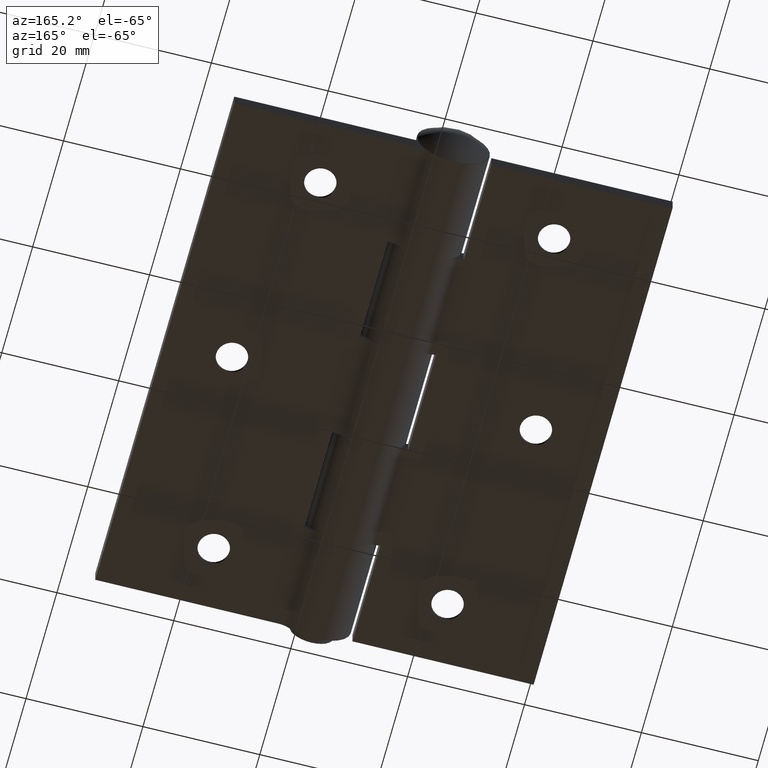
[diagram: clean part render]
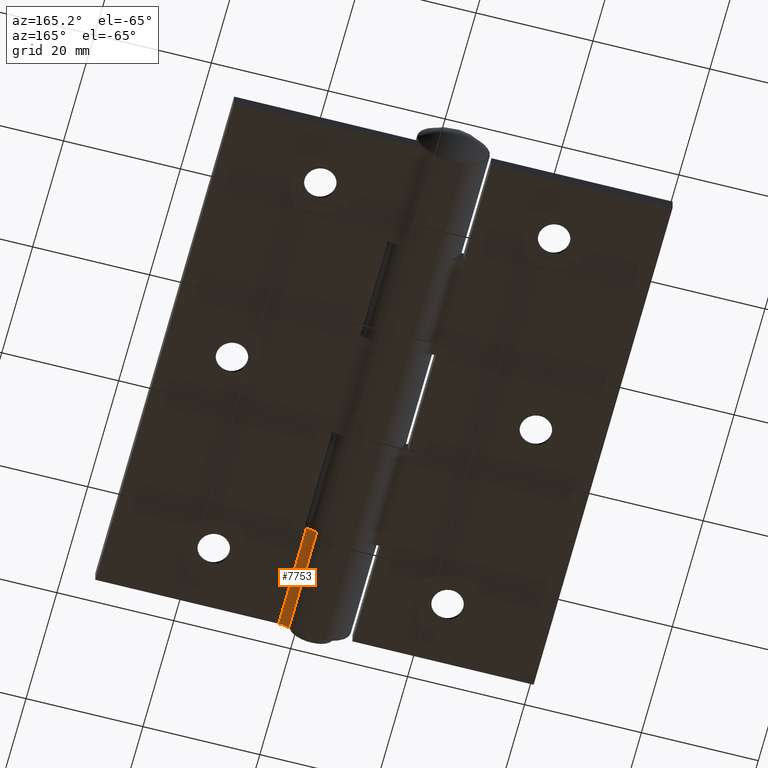
[diagram: same view with one face highlighted and labeled with its STEP entity id]
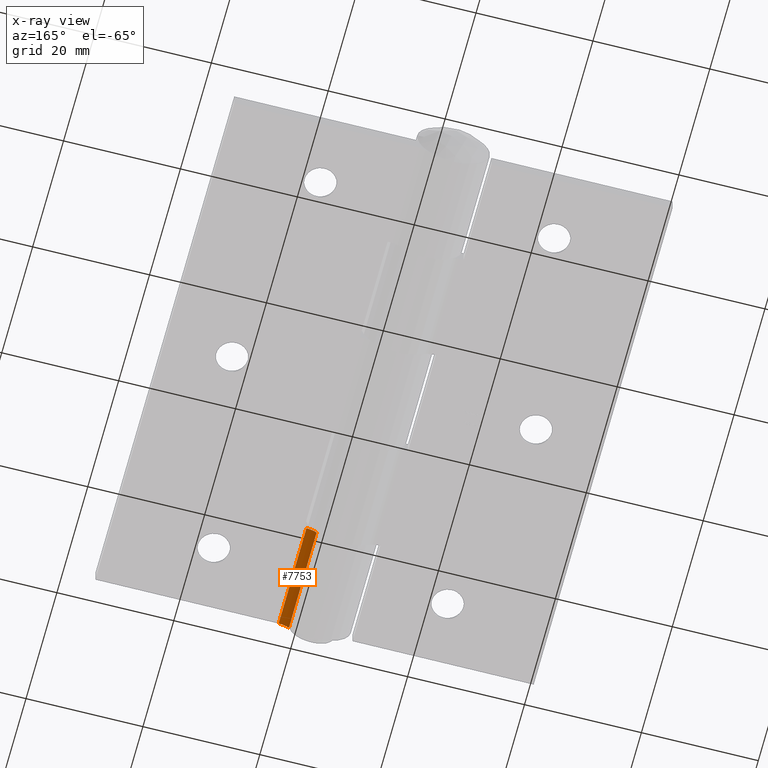
[diagram: x-ray of the same camera — body ghosted, the highlighted face saturated]
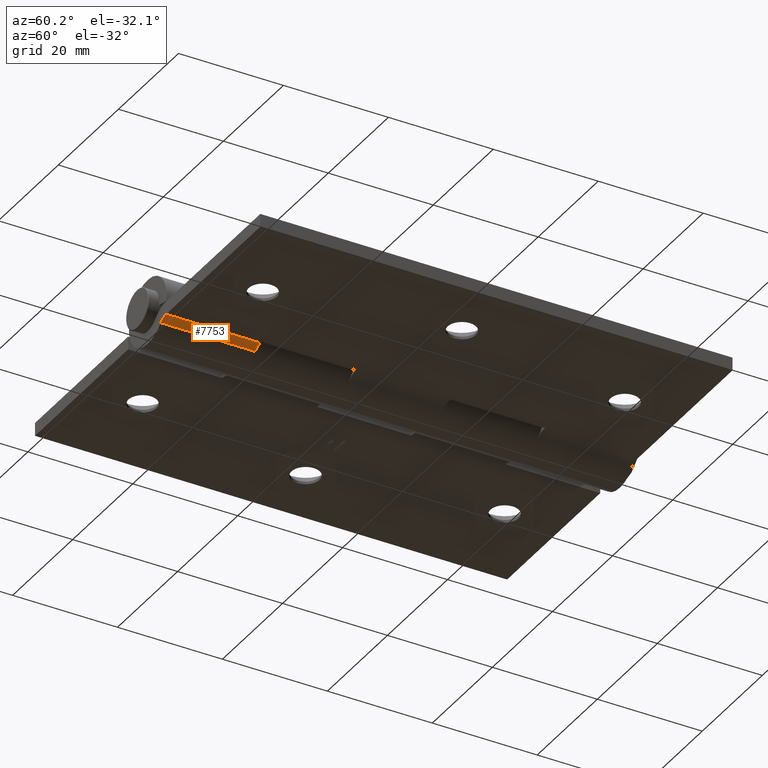
[diagram: same view with one face highlighted and labeled with its STEP entity id]
A machine part, auxiliary view. The second image highlights one B-rep face of the part: STEP entity #7753.
The next image is the same camera in x-ray: the body ghosted, the highlighted face saturated — about 0% of this face is hidden behind the body in this view.
A second angle (auxiliary view) of the same face is appended — the face is thin or edge-on in the first view.
In plain terms, the highlighted cylindrical surface (edge-blend (fillet) strip) has radius 2.5 mm, axis along (0, 1, -0).
Its self-contained STEP definition (entity closure, byte-faithful):
#213 = DIRECTION ( 'NONE',  ( 6.245004513516504751E-15, 0.000000000000000000, 1.000000000000000000 ) ) ;
#378 = DIRECTION ( 'NONE',  ( -0.000000000000000000, -1.000000000000000000, -0.000000000000000000 ) ) ;
#404 = VERTEX_POINT ( 'NONE', #633 ) ;
#633 = CARTESIAN_POINT ( 'NONE',  ( -4.374088826398531360, 26.99999999999999645, -4.464285714285714413 ) ) ;
#977 = VECTOR ( 'NONE', #1905, 1000.000000000000000 ) ;
#1078 = CARTESIAN_POINT ( 'NONE',  ( -6.123724356957946036, 26.99999999999999645, -3.750000000000000000 ) ) ;
#1250 = CARTESIAN_POINT ( 'NONE',  ( -6.123724356957943371, 26.99999999999999645, -6.250000000000000000 ) ) ;
#1427 = ORIENTED_EDGE ( 'NONE', *, *, #9127, .F. ) ;
#1782 = AXIS2_PLACEMENT_3D ( 'NONE', #10168, #6295, #10132 ) ;
#1905 = DIRECTION ( 'NONE',  ( -0.000000000000000000, -1.000000000000000000, -0.000000000000000000 ) ) ;
#1936 = CYLINDRICAL_SURFACE ( 'NONE', #1782, 2.500000000000000444 ) ;
#2646 = LINE ( 'NONE', #9975, #7915 ) ;
#3129 = ORIENTED_EDGE ( 'NONE', *, *, #11970, .T. ) ;
#3441 = VERTEX_POINT ( 'NONE', #1078 ) ;
#4158 = CIRCLE ( 'NONE', #6684, 2.500000000000000444 ) ;
#5054 = VERTEX_POINT ( 'NONE', #6358 ) ;
#5163 = ORIENTED_EDGE ( 'NONE', *, *, #8050, .F. ) ;
#5235 = DIRECTION ( 'NONE',  ( -0.000000000000000000, -1.000000000000000000, -0.000000000000000000 ) ) ;
#5295 = ORIENTED_EDGE ( 'NONE', *, *, #12173, .T. ) ;
#6295 = DIRECTION ( 'NONE',  ( -0.000000000000000000, -1.000000000000000000, -0.000000000000000000 ) ) ;
#6358 = CARTESIAN_POINT ( 'NONE',  ( -6.123724356957943371, 45.00000000000000000, -3.750000000000000000 ) ) ;
#6684 = AXIS2_PLACEMENT_3D ( 'NONE', #11851, #10892, #7028 ) ;
#7028 = DIRECTION ( 'NONE',  ( 0.000000000000000000, 0.000000000000000000, -1.000000000000000000 ) ) ;
#7646 = FACE_OUTER_BOUND ( 'NONE', #10529, .T. ) ;
#7753 = ADVANCED_FACE ( 'NONE', ( #7646 ), #1936, .F. ) ;
#7915 = VECTOR ( 'NONE', #5235, 1000.000000000000000 ) ;
#8050 = EDGE_CURVE ( 'NONE', #12379, #5054, #4158, .T. ) ;
#8467 = AXIS2_PLACEMENT_3D ( 'NONE', #1250, #378, #213 ) ;
#8624 = LINE ( 'NONE', #9228, #977 ) ;
#9127 = EDGE_CURVE ( 'NONE', #5054, #3441, #2646, .T. ) ;
#9228 = CARTESIAN_POINT ( 'NONE',  ( -4.374088826398531360, 45.00000000000000000, -4.464285714285714413 ) ) ;
#9947 = CIRCLE ( 'NONE', #8467, 2.500000000000000444 ) ;
#9975 = CARTESIAN_POINT ( 'NONE',  ( -6.123724356957943371, 45.00000000000000000, -3.750000000000000000 ) ) ;
#10132 = DIRECTION ( 'NONE',  ( 0.000000000000000000, 0.000000000000000000, -1.000000000000000000 ) ) ;
#10168 = CARTESIAN_POINT ( 'NONE',  ( -6.123724356957943371, 45.00000000000000000, -6.250000000000000000 ) ) ;
#10529 = EDGE_LOOP ( 'NONE', ( #3129, #5295, #1427, #5163 ) ) ;
#10892 = DIRECTION ( 'NONE',  ( -0.000000000000000000, -1.000000000000000000, 0.000000000000000000 ) ) ;
#11027 = CARTESIAN_POINT ( 'NONE',  ( -4.374088826398531360, 45.00000000000000000, -4.464285714285714413 ) ) ;
#11851 = CARTESIAN_POINT ( 'NONE',  ( -6.123724356957943371, 45.00000000000000000, -6.250000000000000000 ) ) ;
#11970 = EDGE_CURVE ( 'NONE', #12379, #404, #8624, .T. ) ;
#12173 = EDGE_CURVE ( 'NONE', #404, #3441, #9947, .T. ) ;
#12379 = VERTEX_POINT ( 'NONE', #11027 ) ;